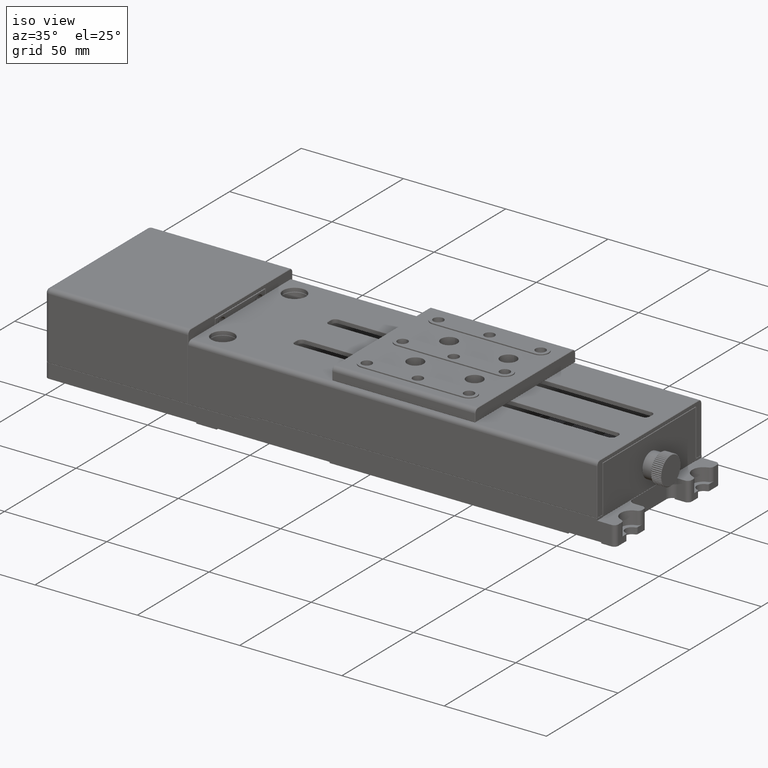
[diagram: clean part render]
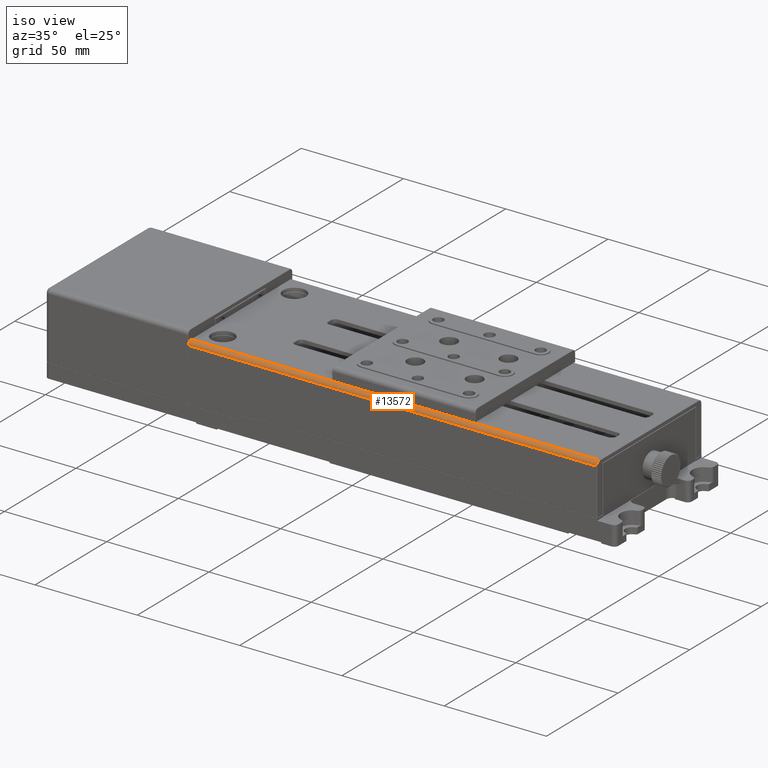
[diagram: same view with one face highlighted and labeled with its STEP entity id]
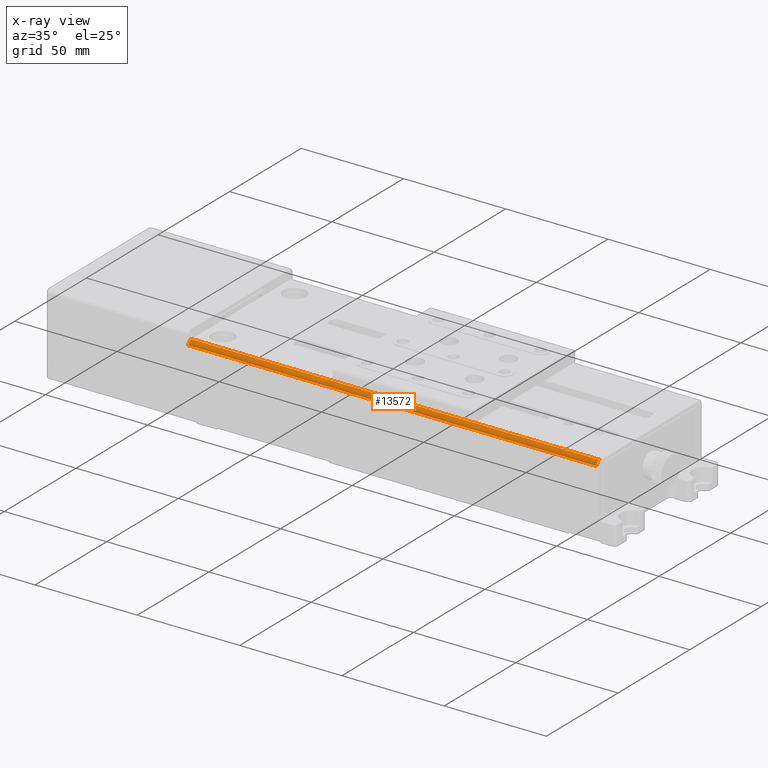
[diagram: x-ray of the same camera — body ghosted, the highlighted face saturated]
A machine part, iso view. The second image highlights one B-rep face of the part: STEP entity #13572.
The next image is the same camera in x-ray: the body ghosted, the highlighted face saturated — about 0% of this face is hidden behind the body in this view.
In plain terms, the highlighted cylindrical surface (edge-blend (fillet) strip) has radius 2 mm, axis along (-1, 0, 0).
Its self-contained STEP definition (entity closure, byte-faithful):
#501 = ORIENTED_EDGE ( 'NONE', *, *, #45706, .F. ) ;
#1549 = DIRECTION ( 'NONE',  ( -1.000000000000000000, 2.220446049250315053E-16, 0.000000000000000000 ) ) ;
#3399 = CIRCLE ( 'NONE', #14918, 1.999999999999998224 ) ;
#8544 = EDGE_CURVE ( 'NONE', #26871, #48912, #16719, .T. ) ;
#9819 = VERTEX_POINT ( 'NONE', #55075 ) ;
#11709 = DIRECTION ( 'NONE',  ( 1.000000000000000000, -2.220446049250315053E-16, 0.000000000000000000 ) ) ;
#12724 = DIRECTION ( 'NONE',  ( -1.000000000000000000, 2.220446049250315053E-16, 0.000000000000000000 ) ) ;
#13194 = CYLINDRICAL_SURFACE ( 'NONE', #66854, 1.999999999999998224 ) ;
#13572 = ADVANCED_FACE ( 'NONE', ( #57578 ), #13194, .T. ) ;
#14918 = AXIS2_PLACEMENT_3D ( 'NONE', #50549, #27883, #39032 ) ;
#16719 = LINE ( 'NONE', #66491, #31926 ) ;
#17960 = ORIENTED_EDGE ( 'NONE', *, *, #8544, .F. ) ;
#18153 = CARTESIAN_POINT ( 'NONE',  ( 116.3747400185976062, -43.46919745025279980, 28.00000000000000000 ) ) ;
#26871 = VERTEX_POINT ( 'NONE', #42900 ) ;
#27883 = DIRECTION ( 'NONE',  ( 1.000000000000000000, -2.220446049250315053E-16, 0.000000000000000000 ) ) ;
#28870 = VECTOR ( 'NONE', #11709, 1000.000000000000000 ) ;
#31253 = DIRECTION ( 'NONE',  ( -1.000000000000000000, 2.220446049250315053E-16, 0.000000000000000000 ) ) ;
#31926 = VECTOR ( 'NONE', #1549, 1000.000000000000000 ) ;
#33217 = ORIENTED_EDGE ( 'NONE', *, *, #62845, .T. ) ;
#34763 = DIRECTION ( 'NONE',  ( 0.000000000000000000, 0.000000000000000000, 1.000000000000000000 ) ) ;
#39032 = DIRECTION ( 'NONE',  ( 0.000000000000000000, 0.000000000000000000, -1.000000000000000000 ) ) ;
#39136 = LINE ( 'NONE', #65855, #28870 ) ;
#40238 = CARTESIAN_POINT ( 'NONE',  ( 116.3747400185976062, -43.46919745025279980, 30.00000000000000000 ) ) ;
#42900 = CARTESIAN_POINT ( 'NONE',  ( 116.3747400185976062, -45.46919745025279980, 28.00000000000000000 ) ) ;
#44693 = EDGE_LOOP ( 'NONE', ( #501, #58842, #17960, #33217 ) ) ;
#45706 = EDGE_CURVE ( 'NONE', #9819, #62450, #39136, .T. ) ;
#48912 = VERTEX_POINT ( 'NONE', #67098 ) ;
#50549 = CARTESIAN_POINT ( 'NONE',  ( -83.22525998140230286, -43.46919745025275006, 28.00000000000000000 ) ) ;
#52617 = AXIS2_PLACEMENT_3D ( 'NONE', #18153, #12724, #34763 ) ;
#55075 = CARTESIAN_POINT ( 'NONE',  ( -83.22525998140230286, -43.46919745025275006, 30.00000000000000000 ) ) ;
#57212 = DIRECTION ( 'NONE',  ( 0.000000000000000000, 0.000000000000000000, 1.000000000000000000 ) ) ;
#57578 = FACE_OUTER_BOUND ( 'NONE', #44693, .T. ) ;
#57943 = CARTESIAN_POINT ( 'NONE',  ( 116.5747400185975948, -43.46919745025279980, 28.00000000000000000 ) ) ;
#58842 = ORIENTED_EDGE ( 'NONE', *, *, #65399, .T. ) ;
#62450 = VERTEX_POINT ( 'NONE', #40238 ) ;
#62845 = EDGE_CURVE ( 'NONE', #26871, #62450, #69952, .T. ) ;
#65399 = EDGE_CURVE ( 'NONE', #9819, #48912, #3399, .T. ) ;
#65855 = CARTESIAN_POINT ( 'NONE',  ( 116.5747400185975948, -43.46919745025279980, 30.00000000000000000 ) ) ;
#66491 = CARTESIAN_POINT ( 'NONE',  ( 116.5747400185975948, -45.46919745025279980, 28.00000000000000000 ) ) ;
#66854 = AXIS2_PLACEMENT_3D ( 'NONE', #57943, #31253, #57212 ) ;
#67098 = CARTESIAN_POINT ( 'NONE',  ( -83.22525998140230286, -45.46919745025279980, 28.00000000000000000 ) ) ;
#69952 = CIRCLE ( 'NONE', #52617, 1.999999999999998224 ) ;